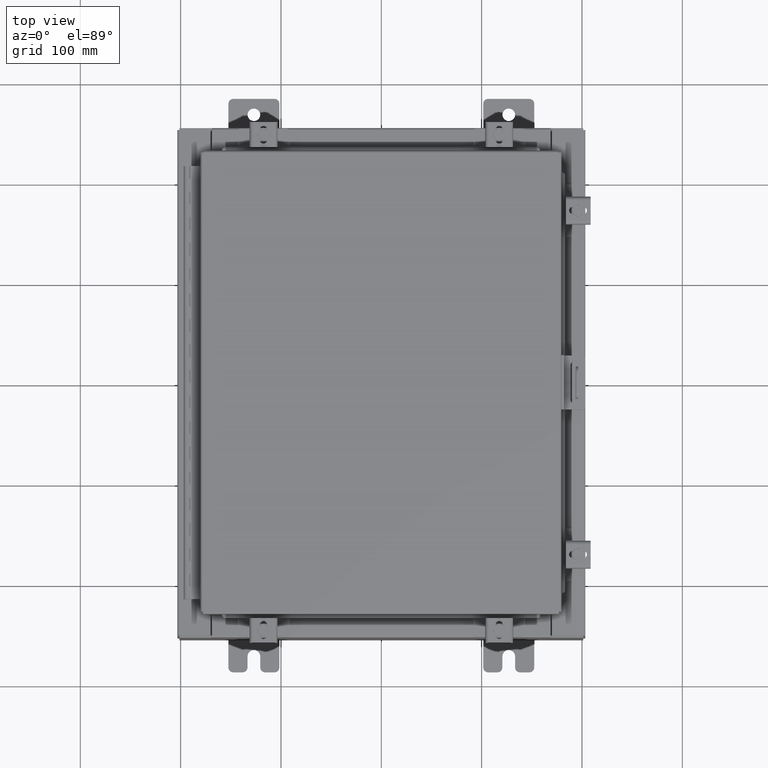
[diagram: clean part render]
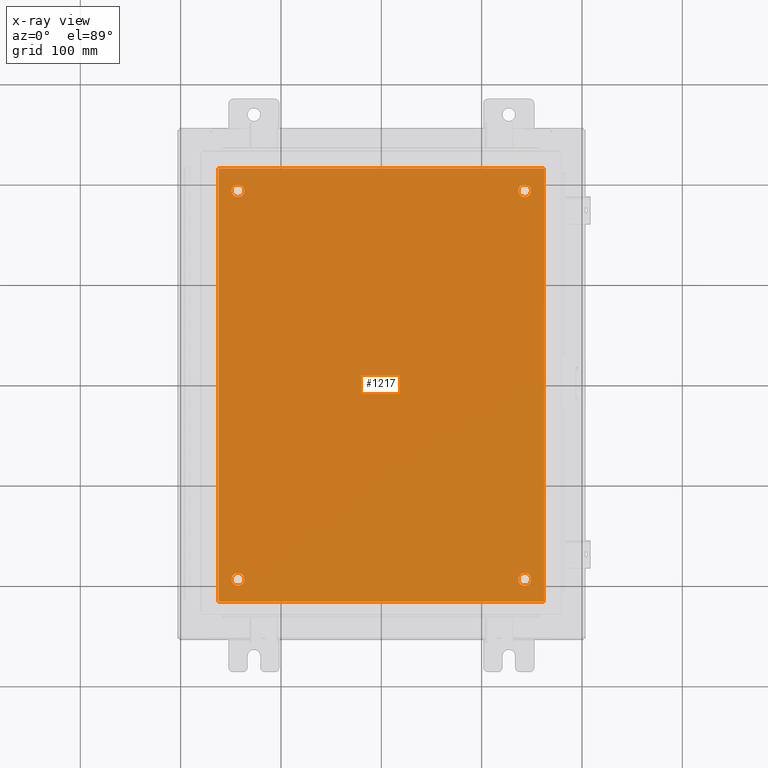
[diagram: x-ray — body ghosted, one internal face saturated and labeled with its STEP entity id]
A machine part, top view, then the same camera in x-ray: the body is ghosted and one INTERNAL B-rep face — a face not visible from any outside direction — is saturated and labeled: STEP entity #1217.
In plain terms, the highlighted planar face has unit normal (0, 0, -1).
Its self-contained STEP definition (entity closure, byte-faithful):
#406 = DIRECTION ( 'NONE',  ( -1.000000000000000000, 0.0000000000000000000, 0.0000000000000000000 ) ) ;
#803 = DIRECTION ( 'NONE',  ( -1.000000000000000000, 0.0000000000000000000, 0.0000000000000000000 ) ) ;
#901 = EDGE_CURVE ( 'NONE', #15880, #26425, #8700, .T. ) ;
#1217 = ADVANCED_FACE ( 'NONE', ( #8337, #14386, #21222, #2319, #25854 ), #15647, .T. ) ;
#1470 = DIRECTION ( 'NONE',  ( -0.0000000000000000000, -0.0000000000000000000, 1.000000000000000000 ) ) ;
#1530 = ORIENTED_EDGE ( 'NONE', *, *, #11102, .T. ) ;
#1656 = CARTESIAN_POINT ( 'NONE',  ( 6.383000000000000900, -8.499999999999998200, -0.1039999999999999800 ) ) ;
#2319 = FACE_BOUND ( 'NONE', #12813, .T. ) ;
#2361 = EDGE_CURVE ( 'NONE', #8504, #29368, #4014, .T. ) ;
#2688 = VECTOR ( 'NONE', #17692, 39.37007874015748100 ) ;
#2693 = CIRCLE ( 'NONE', #7436, 0.2499999999999998100 ) ;
#2722 = AXIS2_PLACEMENT_3D ( 'NONE', #20040, #6385, #22357 ) ;
#3006 = DIRECTION ( 'NONE',  ( -0.0000000000000000000, -0.0000000000000000000, 1.000000000000000000 ) ) ;
#3644 = ORIENTED_EDGE ( 'NONE', *, *, #24776, .F. ) ;
#4014 = CIRCLE ( 'NONE', #18468, 0.2499999999999998100 ) ;
#4155 = CARTESIAN_POINT ( 'NONE',  ( 5.625000000000004400, -7.625000000000000900, -0.1039999999999999800 ) ) ;
#4660 = CARTESIAN_POINT ( 'NONE',  ( -5.625000000000000000, 7.625000000000001800, -0.1039999999999999800 ) ) ;
#4874 = LINE ( 'NONE', #17327, #10155 ) ;
#5225 = CIRCLE ( 'NONE', #18503, 0.2499999999999998100 ) ;
#5541 = CARTESIAN_POINT ( 'NONE',  ( -6.382999999999998200, -8.499999999999998200, -0.1039999999999998100 ) ) ;
#5628 = CARTESIAN_POINT ( 'NONE',  ( 5.625000000000004400, -7.625000000000000900, -0.1039999999999999800 ) ) ;
#5913 = CARTESIAN_POINT ( 'NONE',  ( 6.383000000000000900, 8.500000000000000000, -0.1039999999999999800 ) ) ;
#6336 = CARTESIAN_POINT ( 'NONE',  ( -6.499999999999998200, 8.500000000000000000, -0.1039999999999999800 ) ) ;
#6385 = DIRECTION ( 'NONE',  ( -0.0000000000000000000, -0.0000000000000000000, 1.000000000000000000 ) ) ;
#6440 = DIRECTION ( 'NONE',  ( -1.000000000000000000, 0.0000000000000000000, 0.0000000000000000000 ) ) ;
#6636 = DIRECTION ( 'NONE',  ( 0.0000000000000000000, 0.0000000000000000000, -1.000000000000000000 ) ) ;
#6961 = LINE ( 'NONE', #24491, #18363 ) ;
#6984 = DIRECTION ( 'NONE',  ( -1.000000000000000000, 0.0000000000000000000, 0.0000000000000000000 ) ) ;
#7083 = ORIENTED_EDGE ( 'NONE', *, *, #27937, .T. ) ;
#7309 = CARTESIAN_POINT ( 'NONE',  ( 5.875000000000003600, -7.625000000000000900, -0.1039999999999999800 ) ) ;
#7372 = CIRCLE ( 'NONE', #18487, 0.2499999999999987000 ) ;
#7436 = AXIS2_PLACEMENT_3D ( 'NONE', #28063, #14390, #803 ) ;
#7448 = EDGE_CURVE ( 'NONE', #10646, #14026, #2693, .T. ) ;
#7470 = EDGE_LOOP ( 'NONE', ( #20345, #13619 ) ) ;
#7635 = ORIENTED_EDGE ( 'NONE', *, *, #25701, .T. ) ;
#7749 = EDGE_CURVE ( 'NONE', #11071, #22831, #6961, .T. ) ;
#7907 = DIRECTION ( 'NONE',  ( -1.000000000000000000, 0.0000000000000000000, 0.0000000000000000000 ) ) ;
#8249 = VERTEX_POINT ( 'NONE', #14824 ) ;
#8337 = FACE_BOUND ( 'NONE', #16297, .T. ) ;
#8484 = CARTESIAN_POINT ( 'NONE',  ( -6.382999999999998200, 8.500000000000000000, -0.1039999999999998100 ) ) ;
#8504 = VERTEX_POINT ( 'NONE', #11222 ) ;
#8700 = LINE ( 'NONE', #6336, #2688 ) ;
#10155 = VECTOR ( 'NONE', #19515, 39.37007874015748100 ) ;
#10616 = CIRCLE ( 'NONE', #16911, 0.2499999999999987000 ) ;
#10646 = VERTEX_POINT ( 'NONE', #13052 ) ;
#10777 = DIRECTION ( 'NONE',  ( 0.0000000000000000000, -1.000000000000000000, 0.0000000000000000000 ) ) ;
#11071 = VERTEX_POINT ( 'NONE', #5541 ) ;
#11102 = EDGE_CURVE ( 'NONE', #25050, #23172, #27586, .T. ) ;
#11222 = CARTESIAN_POINT ( 'NONE',  ( -5.375000000000000900, 7.625000000000001800, -0.1039999999999999800 ) ) ;
#11564 = ORIENTED_EDGE ( 'NONE', *, *, #7448, .T. ) ;
#11965 = CIRCLE ( 'NONE', #20372, 0.2499999999999987000 ) ;
#12813 = EDGE_LOOP ( 'NONE', ( #18784, #7635 ) ) ;
#13052 = CARTESIAN_POINT ( 'NONE',  ( -5.875000000000000000, -7.625000000000001800, -0.1039999999999999800 ) ) ;
#13368 = EDGE_CURVE ( 'NONE', #23172, #25050, #10616, .T. ) ;
#13619 = ORIENTED_EDGE ( 'NONE', *, *, #24704, .T. ) ;
#13995 = DIRECTION ( 'NONE',  ( -0.0000000000000000000, -0.0000000000000000000, 1.000000000000000000 ) ) ;
#14026 = VERTEX_POINT ( 'NONE', #16161 ) ;
#14386 = FACE_BOUND ( 'NONE', #16720, .T. ) ;
#14390 = DIRECTION ( 'NONE',  ( -0.0000000000000000000, -0.0000000000000000000, 1.000000000000000000 ) ) ;
#14708 = ORIENTED_EDGE ( 'NONE', *, *, #901, .F. ) ;
#14824 = CARTESIAN_POINT ( 'NONE',  ( 5.874999999999999100, 7.625000000000002700, -0.1039999999999999800 ) ) ;
#15077 = CARTESIAN_POINT ( 'NONE',  ( 5.625000000000000000, 7.625000000000002700, -0.1039999999999999800 ) ) ;
#15408 = EDGE_CURVE ( 'NONE', #8249, #16352, #7372, .T. ) ;
#15647 = PLANE ( 'NONE',  #19770 ) ;
#15880 = VERTEX_POINT ( 'NONE', #5913 ) ;
#15938 = LINE ( 'NONE', #8484, #21323 ) ;
#16161 = CARTESIAN_POINT ( 'NONE',  ( -5.375000000000000900, -7.625000000000001800, -0.1039999999999999800 ) ) ;
#16297 = EDGE_LOOP ( 'NONE', ( #7083, #11564 ) ) ;
#16352 = VERTEX_POINT ( 'NONE', #21333 ) ;
#16521 = EDGE_CURVE ( 'NONE', #22831, #15880, #4874, .T. ) ;
#16623 = CARTESIAN_POINT ( 'NONE',  ( -5.625000000000000000, 7.625000000000001800, -0.1039999999999999800 ) ) ;
#16720 = EDGE_LOOP ( 'NONE', ( #22141, #1530 ) ) ;
#16911 = AXIS2_PLACEMENT_3D ( 'NONE', #4155, #20096, #6440 ) ;
#17327 = CARTESIAN_POINT ( 'NONE',  ( 6.383000000000002700, -8.499999999999998200, -0.1039999999999998100 ) ) ;
#17385 = DIRECTION ( 'NONE',  ( -1.000000000000000000, 0.0000000000000000000, 0.0000000000000000000 ) ) ;
#17692 = DIRECTION ( 'NONE',  ( -1.000000000000000000, -0.0000000000000000000, -0.0000000000000000000 ) ) ;
#17961 = CIRCLE ( 'NONE', #2722, 0.2499999999999998100 ) ;
#18363 = VECTOR ( 'NONE', #29049, 39.37007874015748100 ) ;
#18468 = AXIS2_PLACEMENT_3D ( 'NONE', #16623, #3006, #18916 ) ;
#18480 = CARTESIAN_POINT ( 'NONE',  ( -6.382999999999998200, 8.500000000000000000, -0.1039999999999998100 ) ) ;
#18487 = AXIS2_PLACEMENT_3D ( 'NONE', #27682, #13995, #406 ) ;
#18503 = AXIS2_PLACEMENT_3D ( 'NONE', #4660, #20623, #6984 ) ;
#18784 = ORIENTED_EDGE ( 'NONE', *, *, #2361, .T. ) ;
#18916 = DIRECTION ( 'NONE',  ( -1.000000000000000000, 0.0000000000000000000, 0.0000000000000000000 ) ) ;
#19292 = ORIENTED_EDGE ( 'NONE', *, *, #16521, .F. ) ;
#19515 = DIRECTION ( 'NONE',  ( 0.0000000000000000000, 1.000000000000000000, 0.0000000000000000000 ) ) ;
#19770 = AXIS2_PLACEMENT_3D ( 'NONE', #20264, #6636, #22601 ) ;
#20040 = CARTESIAN_POINT ( 'NONE',  ( -5.625000000000000000, -7.625000000000001800, -0.1039999999999999800 ) ) ;
#20096 = DIRECTION ( 'NONE',  ( -0.0000000000000000000, -0.0000000000000000000, 1.000000000000000000 ) ) ;
#20264 = CARTESIAN_POINT ( 'NONE',  ( 0.0000000000000000000, 0.0000000000000000000, -0.1039999999999999800 ) ) ;
#20345 = ORIENTED_EDGE ( 'NONE', *, *, #15408, .T. ) ;
#20372 = AXIS2_PLACEMENT_3D ( 'NONE', #15077, #1470, #17385 ) ;
#20623 = DIRECTION ( 'NONE',  ( -0.0000000000000000000, -0.0000000000000000000, 1.000000000000000000 ) ) ;
#20987 = CARTESIAN_POINT ( 'NONE',  ( 5.375000000000006200, -7.625000000000000900, -0.1039999999999999800 ) ) ;
#21222 = FACE_BOUND ( 'NONE', #7470, .T. ) ;
#21323 = VECTOR ( 'NONE', #10777, 39.37007874015748100 ) ;
#21333 = CARTESIAN_POINT ( 'NONE',  ( 5.375000000000001800, 7.625000000000002700, -0.1039999999999999800 ) ) ;
#21586 = DIRECTION ( 'NONE',  ( -0.0000000000000000000, -0.0000000000000000000, 1.000000000000000000 ) ) ;
#22141 = ORIENTED_EDGE ( 'NONE', *, *, #13368, .T. ) ;
#22145 = ORIENTED_EDGE ( 'NONE', *, *, #7749, .F. ) ;
#22357 = DIRECTION ( 'NONE',  ( -1.000000000000000000, 0.0000000000000000000, 0.0000000000000000000 ) ) ;
#22601 = DIRECTION ( 'NONE',  ( -1.000000000000000000, 0.0000000000000000000, -0.0000000000000000000 ) ) ;
#22831 = VERTEX_POINT ( 'NONE', #1656 ) ;
#23027 = AXIS2_PLACEMENT_3D ( 'NONE', #5628, #21586, #7907 ) ;
#23172 = VERTEX_POINT ( 'NONE', #7309 ) ;
#24491 = CARTESIAN_POINT ( 'NONE',  ( -6.499999999999998200, -8.499999999999998200, -0.1039999999999999800 ) ) ;
#24704 = EDGE_CURVE ( 'NONE', #16352, #8249, #11965, .T. ) ;
#24776 = EDGE_CURVE ( 'NONE', #26425, #11071, #15938, .T. ) ;
#25050 = VERTEX_POINT ( 'NONE', #20987 ) ;
#25642 = CARTESIAN_POINT ( 'NONE',  ( -5.875000000000000000, 7.625000000000001800, -0.1039999999999999800 ) ) ;
#25701 = EDGE_CURVE ( 'NONE', #29368, #8504, #5225, .T. ) ;
#25854 = FACE_OUTER_BOUND ( 'NONE', #26540, .T. ) ;
#26425 = VERTEX_POINT ( 'NONE', #18480 ) ;
#26540 = EDGE_LOOP ( 'NONE', ( #22145, #3644, #14708, #19292 ) ) ;
#27586 = CIRCLE ( 'NONE', #23027, 0.2499999999999987000 ) ;
#27682 = CARTESIAN_POINT ( 'NONE',  ( 5.625000000000000000, 7.625000000000002700, -0.1039999999999999800 ) ) ;
#27937 = EDGE_CURVE ( 'NONE', #14026, #10646, #17961, .T. ) ;
#28063 = CARTESIAN_POINT ( 'NONE',  ( -5.625000000000000000, -7.625000000000001800, -0.1039999999999999800 ) ) ;
#29049 = DIRECTION ( 'NONE',  ( 1.000000000000000000, 0.0000000000000000000, 0.0000000000000000000 ) ) ;
#29368 = VERTEX_POINT ( 'NONE', #25642 ) ;